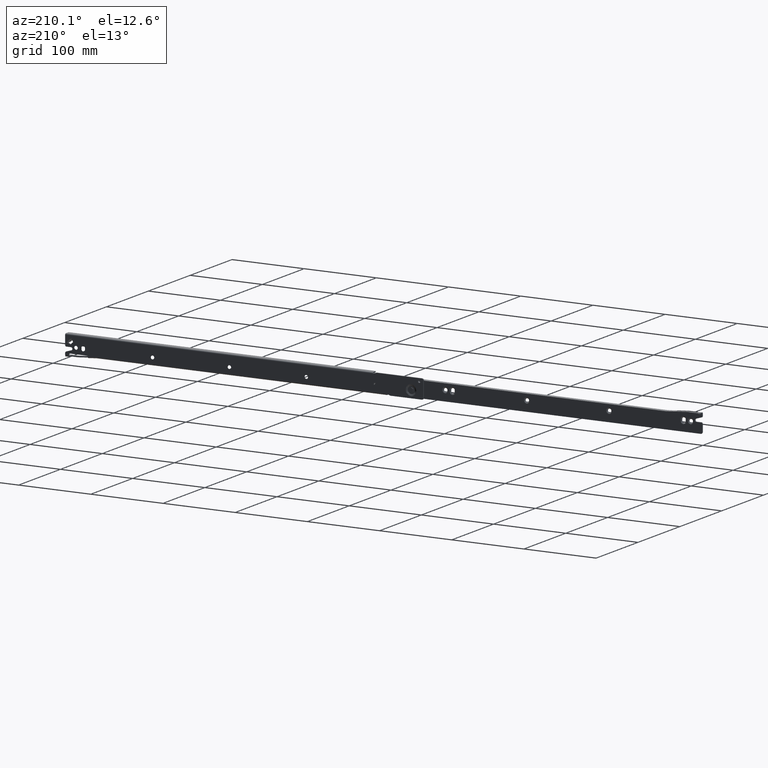
[diagram: clean part render]
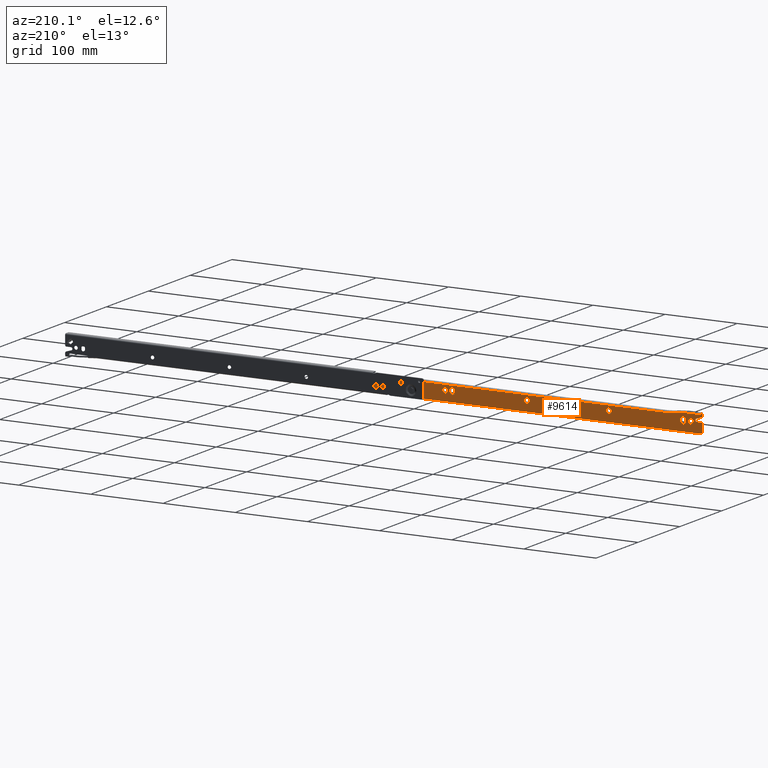
[diagram: same view with one face highlighted and labeled with its STEP entity id]
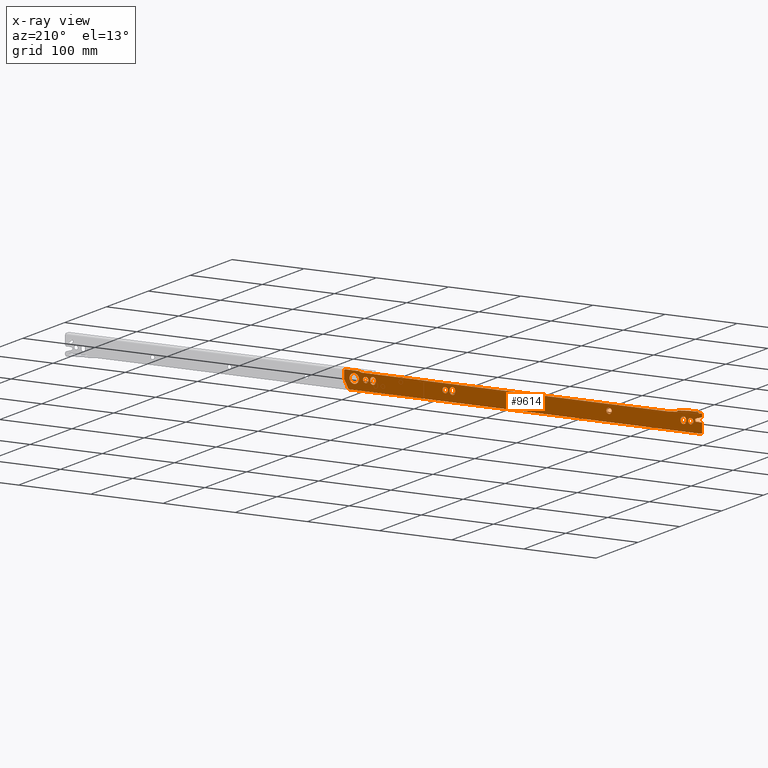
[diagram: x-ray of the same camera — body ghosted, the highlighted face saturated]
A machine part, auxiliary view. The second image highlights one B-rep face of the part: STEP entity #9614.
The next image is the same camera in x-ray: the body ghosted, the highlighted face saturated — about 0% of this face is hidden behind the body in this view.
In plain terms, the highlighted face is a freeform B-spline surface patch.
Its self-contained STEP definition (entity closure, byte-faithful):
#5507=CARTESIAN_POINT('',(462.261559997872330,1.500000001808762,14.294221621742340));
#5508=VERTEX_POINT('',#5507);
#5514=CARTESIAN_POINT('',(466.0,1.500000000000000,17.750000000000000));
#5515=VERTEX_POINT('',#5514);
#5516=CARTESIAN_POINT('',(466.0,1.500000000000000,17.750000000000000));
#5517=CARTESIAN_POINT('',(462.533535679786330,1.500000000000000,17.750000000000007));
#5518=CARTESIAN_POINT('',(462.261559997872380,1.500000001808762,14.294221621742336));
#5526=(BOUNDED_CURVE()B_SPLINE_CURVE(2,(#5516,#5517,#5518),.UNSPECIFIED.,.F.,.U.)B_SPLINE_CURVE_WITH_KNOTS((3,3),(0.0,0.236331299474004),.UNSPECIFIED.)CURVE()GEOMETRIC_REPRESENTATION_ITEM()RATIONAL_B_SPLINE_CURVE((1.0,0.723120659962772,0.969723353753566))REPRESENTATION_ITEM(''));
#5527=EDGE_CURVE('',#5515,#5508,#5526,.T.);
#5529=CARTESIAN_POINT('',(469.738440002127670,1.500000001808749,13.705778378257669));
#5530=VERTEX_POINT('',#5529);
#5531=CARTESIAN_POINT('',(469.738440002127670,1.500000001808749,13.705778378257667));
#5532=CARTESIAN_POINT('',(469.750000000000060,1.500000000000000,13.852662086027413));
#5533=CARTESIAN_POINT('',(469.750000000000000,1.500000000000000,14.0));
#5534=CARTESIAN_POINT('',(469.750000000000000,1.500000000000000,17.750000000000004));
#5535=CARTESIAN_POINT('',(466.0,1.500000000000000,17.750000000000000));
#5543=(BOUNDED_CURVE()B_SPLINE_CURVE(2,(#5531,#5532,#5533,#5534,#5535),.UNSPECIFIED.,.F.,.U.)B_SPLINE_CURVE_WITH_KNOTS((3,2,3),(0.736331299474005,0.750000000000000,1.0),.UNSPECIFIED.)CURVE()GEOMETRIC_REPRESENTATION_ITEM()RATIONAL_B_SPLINE_CURVE((0.969723353753567,0.983986121223776,1.0,0.707106781186547,1.0))REPRESENTATION_ITEM(''));
#5544=EDGE_CURVE('',#5530,#5515,#5543,.T.);
#5620=CARTESIAN_POINT('',(466.0,1.500000000000000,10.250000000000000));
#5621=VERTEX_POINT('',#5620);
#5622=CARTESIAN_POINT('',(466.0,1.500000000000000,10.250000000000000));
#5623=CARTESIAN_POINT('',(469.466464320213840,1.500000000000001,10.250000000000000));
#5624=CARTESIAN_POINT('',(469.738440002127790,1.500000001808749,13.705778378257662));
#5632=(BOUNDED_CURVE()B_SPLINE_CURVE(2,(#5622,#5623,#5624),.UNSPECIFIED.,.F.,.U.)B_SPLINE_CURVE_WITH_KNOTS((3,3),(0.500000000000000,0.736331299474004),.UNSPECIFIED.)CURVE()GEOMETRIC_REPRESENTATION_ITEM()RATIONAL_B_SPLINE_CURVE((1.0,0.723120659962772,0.969723353753566))REPRESENTATION_ITEM(''));
#5633=EDGE_CURVE('',#5621,#5530,#5632,.T.);
#5635=CARTESIAN_POINT('',(462.261559997872380,1.500000001808762,14.294221621742336));
#5636=CARTESIAN_POINT('',(462.250000000000060,1.500000000000000,14.147337913972596));
#5637=CARTESIAN_POINT('',(462.250000000000110,1.500000000000000,14.0));
#5638=CARTESIAN_POINT('',(462.250000000000060,1.500000000000000,10.250000000000000));
#5639=CARTESIAN_POINT('',(466.0,1.500000000000000,10.250000000000000));
#5647=(BOUNDED_CURVE()B_SPLINE_CURVE(2,(#5635,#5636,#5637,#5638,#5639),.UNSPECIFIED.,.F.,.U.)B_SPLINE_CURVE_WITH_KNOTS((3,2,3),(0.236331299474004,0.250000000000000,0.500000000000000),.UNSPECIFIED.)CURVE()GEOMETRIC_REPRESENTATION_ITEM()RATIONAL_B_SPLINE_CURVE((0.969723353753566,0.983986121223776,1.0,0.707106781186547,1.0))REPRESENTATION_ITEM(''));
#5648=EDGE_CURVE('',#5508,#5621,#5647,.T.);
#5689=CARTESIAN_POINT('',(352.261559997872330,1.500000001808784,14.294221621742350));
#5690=VERTEX_POINT('',#5689);
#5696=CARTESIAN_POINT('',(356.0,1.500000000000000,17.750000000000000));
#5697=VERTEX_POINT('',#5696);
#5698=CARTESIAN_POINT('',(356.0,1.500000000000000,17.750000000000000));
#5699=CARTESIAN_POINT('',(352.533535679786100,1.500000000000000,17.750000000000000));
#5700=CARTESIAN_POINT('',(352.261559997872330,1.500000001808784,14.294221621742345));
#5708=(BOUNDED_CURVE()B_SPLINE_CURVE(2,(#5698,#5699,#5700),.UNSPECIFIED.,.F.,.U.)B_SPLINE_CURVE_WITH_KNOTS((3,3),(0.0,0.236331299474004),.UNSPECIFIED.)CURVE()GEOMETRIC_REPRESENTATION_ITEM()RATIONAL_B_SPLINE_CURVE((1.0,0.723120659962772,0.969723353753566))REPRESENTATION_ITEM(''));
#5709=EDGE_CURVE('',#5697,#5690,#5708,.T.);
#5711=CARTESIAN_POINT('',(359.738440002127620,1.500000001808762,13.705778378257660));
#5712=VERTEX_POINT('',#5711);
#5713=CARTESIAN_POINT('',(359.738440002127670,1.500000001808762,13.705778378257667));
#5714=CARTESIAN_POINT('',(359.749999999999890,1.500000000000000,13.852662086027408));
#5715=CARTESIAN_POINT('',(359.749999999999890,1.500000000000000,14.0));
#5716=CARTESIAN_POINT('',(359.749999999999940,1.500000000000000,17.750000000000004));
#5717=CARTESIAN_POINT('',(356.0,1.500000000000000,17.750000000000000));
#5725=(BOUNDED_CURVE()B_SPLINE_CURVE(2,(#5713,#5714,#5715,#5716,#5717),.UNSPECIFIED.,.F.,.U.)B_SPLINE_CURVE_WITH_KNOTS((3,2,3),(0.736331299474004,0.750000000000000,1.0),.UNSPECIFIED.)CURVE()GEOMETRIC_REPRESENTATION_ITEM()RATIONAL_B_SPLINE_CURVE((0.969723353753566,0.983986121223776,1.0,0.707106781186547,1.0))REPRESENTATION_ITEM(''));
#5726=EDGE_CURVE('',#5712,#5697,#5725,.T.);
#5802=CARTESIAN_POINT('',(356.0,1.500000000000000,10.250000000000000));
#5803=VERTEX_POINT('',#5802);
#5804=CARTESIAN_POINT('',(356.0,1.500000000000000,10.250000000000000));
#5805=CARTESIAN_POINT('',(359.466464320213730,1.500000000000001,10.250000000000000));
#5806=CARTESIAN_POINT('',(359.738440002127670,1.500000001808763,13.705778378257662));
#5814=(BOUNDED_CURVE()B_SPLINE_CURVE(2,(#5804,#5805,#5806),.UNSPECIFIED.,.F.,.U.)B_SPLINE_CURVE_WITH_KNOTS((3,3),(0.500000000000000,0.736331299474004),.UNSPECIFIED.)CURVE()GEOMETRIC_REPRESENTATION_ITEM()RATIONAL_B_SPLINE_CURVE((1.0,0.723120659962772,0.969723353753566))REPRESENTATION_ITEM(''));
#5815=EDGE_CURVE('',#5803,#5712,#5814,.T.);
#5817=CARTESIAN_POINT('',(352.261559997872270,1.500000001808784,14.294221621742349));
#5818=CARTESIAN_POINT('',(352.249999999999940,1.500000000000000,14.147337913972603));
#5819=CARTESIAN_POINT('',(352.250000000000000,1.500000000000000,14.0));
#5820=CARTESIAN_POINT('',(352.249999999999940,1.500000000000000,10.250000000000000));
#5821=CARTESIAN_POINT('',(356.0,1.500000000000000,10.250000000000000));
#5829=(BOUNDED_CURVE()B_SPLINE_CURVE(2,(#5817,#5818,#5819,#5820,#5821),.UNSPECIFIED.,.F.,.U.)B_SPLINE_CURVE_WITH_KNOTS((3,2,3),(0.236331299474004,0.250000000000000,0.500000000000000),.UNSPECIFIED.)CURVE()GEOMETRIC_REPRESENTATION_ITEM()RATIONAL_B_SPLINE_CURVE((0.969723353753565,0.983986121223775,1.0,0.707106781186547,1.0))REPRESENTATION_ITEM(''));
#5830=EDGE_CURVE('',#5690,#5803,#5829,.T.);
#5871=CARTESIAN_POINT('',(239.261559997872300,1.500000001808774,14.294221621742340));
#5872=VERTEX_POINT('',#5871);
#5878=CARTESIAN_POINT('',(243.0,1.500000000000000,17.750000000000050));
#5879=VERTEX_POINT('',#5878);
#5880=CARTESIAN_POINT('',(243.0,1.500000000000000,17.750000000000050));
#5881=CARTESIAN_POINT('',(239.533535679786160,1.500000000000001,17.750000000000057));
#5882=CARTESIAN_POINT('',(239.261559997872300,1.500000001808775,14.294221621742340));
#5890=(BOUNDED_CURVE()B_SPLINE_CURVE(2,(#5880,#5881,#5882),.UNSPECIFIED.,.F.,.U.)B_SPLINE_CURVE_WITH_KNOTS((3,3),(0.0,0.236331299474004),.UNSPECIFIED.)CURVE()GEOMETRIC_REPRESENTATION_ITEM()RATIONAL_B_SPLINE_CURVE((1.0,0.723120659962772,0.969723353753566))REPRESENTATION_ITEM(''));
#5891=EDGE_CURVE('',#5879,#5872,#5890,.T.);
#5893=CARTESIAN_POINT('',(246.738440002127790,1.500000001808774,13.705778378257650));
#5894=VERTEX_POINT('',#5893);
#5895=CARTESIAN_POINT('',(246.738440002127730,1.500000001808774,13.705778378257653));
#5896=CARTESIAN_POINT('',(246.750000000000060,1.500000000000000,13.852662086027401));
#5897=CARTESIAN_POINT('',(246.750000000000110,1.500000000000000,14.0));
#5898=CARTESIAN_POINT('',(246.750000000000110,1.500000000000000,17.750000000000057));
#5899=CARTESIAN_POINT('',(243.0,1.500000000000000,17.750000000000050));
#5907=(BOUNDED_CURVE()B_SPLINE_CURVE(2,(#5895,#5896,#5897,#5898,#5899),.UNSPECIFIED.,.F.,.U.)B_SPLINE_CURVE_WITH_KNOTS((3,2,3),(0.736331299474004,0.750000000000000,1.0),.UNSPECIFIED.)CURVE()GEOMETRIC_REPRESENTATION_ITEM()RATIONAL_B_SPLINE_CURVE((0.969723353753566,0.983986121223776,1.0,0.707106781186548,1.0))REPRESENTATION_ITEM(''));
#5908=EDGE_CURVE('',#5894,#5879,#5907,.T.);
#5984=CARTESIAN_POINT('',(243.0,1.500000000000000,10.249999999999950));
#5985=VERTEX_POINT('',#5984);
#5986=CARTESIAN_POINT('',(243.0,1.500000000000000,10.249999999999950));
#5987=CARTESIAN_POINT('',(246.466464320213840,1.500000000000000,10.249999999999945));
#5988=CARTESIAN_POINT('',(246.738440002127730,1.500000001808774,13.705778378257653));
#5996=(BOUNDED_CURVE()B_SPLINE_CURVE(2,(#5986,#5987,#5988),.UNSPECIFIED.,.F.,.U.)B_SPLINE_CURVE_WITH_KNOTS((3,3),(0.500000000000000,0.736331299474004),.UNSPECIFIED.)CURVE()GEOMETRIC_REPRESENTATION_ITEM()RATIONAL_B_SPLINE_CURVE((1.0,0.723120659962772,0.969723353753566))REPRESENTATION_ITEM(''));
#5997=EDGE_CURVE('',#5985,#5894,#5996,.T.);
#5999=CARTESIAN_POINT('',(239.261559997872240,1.500000001808774,14.294221621742347));
#6000=CARTESIAN_POINT('',(239.249999999999910,1.500000000000000,14.147337913972596));
#6001=CARTESIAN_POINT('',(239.249999999999890,1.500000000000000,14.0));
#6002=CARTESIAN_POINT('',(239.250000000000000,1.500000000000000,10.249999999999945));
#6003=CARTESIAN_POINT('',(243.0,1.500000000000000,10.249999999999950));
#6011=(BOUNDED_CURVE()B_SPLINE_CURVE(2,(#5999,#6000,#6001,#6002,#6003),.UNSPECIFIED.,.F.,.U.)B_SPLINE_CURVE_WITH_KNOTS((3,2,3),(0.236331299474004,0.250000000000000,0.500000000000000),.UNSPECIFIED.)CURVE()GEOMETRIC_REPRESENTATION_ITEM()RATIONAL_B_SPLINE_CURVE((0.969723353753566,0.983986121223776,1.0,0.707106781186548,1.0))REPRESENTATION_ITEM(''));
#6012=EDGE_CURVE('',#5872,#5985,#6011,.T.);
#6053=CARTESIAN_POINT('',(125.261559997872200,1.500000001808778,14.294221621742350));
#6054=VERTEX_POINT('',#6053);
#6060=CARTESIAN_POINT('',(129.0,1.500000000000000,17.750000000000050));
#6061=VERTEX_POINT('',#6060);
#6062=CARTESIAN_POINT('',(129.0,1.500000000000000,17.750000000000050));
#6063=CARTESIAN_POINT('',(125.533535679786070,1.500000000000000,17.750000000000053));
#6064=CARTESIAN_POINT('',(125.261559997872250,1.500000001808778,14.294221621742341));
#6072=(BOUNDED_CURVE()B_SPLINE_CURVE(2,(#6062,#6063,#6064),.UNSPECIFIED.,.F.,.U.)B_SPLINE_CURVE_WITH_KNOTS((3,3),(0.0,0.236331299474004),.UNSPECIFIED.)CURVE()GEOMETRIC_REPRESENTATION_ITEM()RATIONAL_B_SPLINE_CURVE((1.0,0.723120659962772,0.969723353753566))REPRESENTATION_ITEM(''));
#6073=EDGE_CURVE('',#6061,#6054,#6072,.T.);
#6075=CARTESIAN_POINT('',(132.738440002127790,1.500000001808781,13.705778378257650));
#6076=VERTEX_POINT('',#6075);
#6077=CARTESIAN_POINT('',(132.738440002127760,1.500000001808781,13.705778378257653));
#6078=CARTESIAN_POINT('',(132.750000000000090,1.500000000000000,13.852662086027401));
#6079=CARTESIAN_POINT('',(132.750000000000110,1.500000000000000,14.0));
#6080=CARTESIAN_POINT('',(132.750000000000060,1.500000000000000,17.750000000000057));
#6081=CARTESIAN_POINT('',(129.0,1.500000000000000,17.750000000000050));
#6089=(BOUNDED_CURVE()B_SPLINE_CURVE(2,(#6077,#6078,#6079,#6080,#6081),.UNSPECIFIED.,.F.,.U.)B_SPLINE_CURVE_WITH_KNOTS((3,2,3),(0.736331299474004,0.750000000000000,1.0),.UNSPECIFIED.)CURVE()GEOMETRIC_REPRESENTATION_ITEM()RATIONAL_B_SPLINE_CURVE((0.969723353753566,0.983986121223776,1.0,0.707106781186548,1.0))REPRESENTATION_ITEM(''));
#6090=EDGE_CURVE('',#6076,#6061,#6089,.T.);
#6166=CARTESIAN_POINT('',(129.0,1.500000000000000,10.249999999999950));
#6167=VERTEX_POINT('',#6166);
#6168=CARTESIAN_POINT('',(129.0,1.500000000000000,10.249999999999950));
#6169=CARTESIAN_POINT('',(132.466464320213930,1.500000000000000,10.249999999999945));
#6170=CARTESIAN_POINT('',(132.738440002127760,1.500000001808781,13.705778378257653));
#6178=(BOUNDED_CURVE()B_SPLINE_CURVE(2,(#6168,#6169,#6170),.UNSPECIFIED.,.F.,.U.)B_SPLINE_CURVE_WITH_KNOTS((3,3),(0.500000000000000,0.736331299474004),.UNSPECIFIED.)CURVE()GEOMETRIC_REPRESENTATION_ITEM()RATIONAL_B_SPLINE_CURVE((1.0,0.723120659962772,0.969723353753566))REPRESENTATION_ITEM(''));
#6179=EDGE_CURVE('',#6167,#6076,#6178,.T.);
#6181=CARTESIAN_POINT('',(125.261559997872240,1.500000001808778,14.294221621742350));
#6182=CARTESIAN_POINT('',(125.249999999999970,1.500000000000000,14.147337913972597));
#6183=CARTESIAN_POINT('',(125.249999999999900,1.500000000000000,14.0));
#6184=CARTESIAN_POINT('',(125.249999999999940,1.500000000000000,10.249999999999945));
#6185=CARTESIAN_POINT('',(129.0,1.500000000000000,10.249999999999950));
#6193=(BOUNDED_CURVE()B_SPLINE_CURVE(2,(#6181,#6182,#6183,#6184,#6185),.UNSPECIFIED.,.F.,.U.)B_SPLINE_CURVE_WITH_KNOTS((3,2,3),(0.236331299474004,0.250000000000000,0.500000000000000),.UNSPECIFIED.)CURVE()GEOMETRIC_REPRESENTATION_ITEM()RATIONAL_B_SPLINE_CURVE((0.969723353753566,0.983986121223776,1.0,0.707106781186548,1.0))REPRESENTATION_ITEM(''));
#6194=EDGE_CURVE('',#6054,#6167,#6193,.T.);
#6493=CARTESIAN_POINT('',(488.499752501324280,1.499999998495464,14.056722491894410));
#6494=VERTEX_POINT('',#6493);
#6500=CARTESIAN_POINT('',(482.0,1.500000000000000,7.500000000000001));
#6501=VERTEX_POINT('',#6500);
#6502=CARTESIAN_POINT('',(488.499752501324390,1.499999998495464,14.056722491894414));
#6503=CARTESIAN_POINT('',(488.500000000000000,1.500000000000000,14.028361791477042));
#6504=CARTESIAN_POINT('',(488.500000000000000,1.500000000000000,14.0));
#6505=CARTESIAN_POINT('',(488.499999999999940,1.500000000000000,7.500000000000004));
#6506=CARTESIAN_POINT('',(482.0,1.500000000000000,7.500000000000001));
#6514=(BOUNDED_CURVE()B_SPLINE_CURVE(2,(#6502,#6503,#6504,#6505,#6506),.UNSPECIFIED.,.F.,.U.)B_SPLINE_CURVE_WITH_KNOTS((3,2,3),(0.248460105061127,0.250000000000000,0.500000000000000),.UNSPECIFIED.)CURVE()GEOMETRIC_REPRESENTATION_ITEM()RATIONAL_B_SPLINE_CURVE((0.996414026702843,0.998195900858875,1.0,0.707106781186547,1.0))REPRESENTATION_ITEM(''));
#6515=EDGE_CURVE('',#6494,#6501,#6514,.T.);
#6517=CARTESIAN_POINT('',(482.0,1.500000000000000,20.500000000000000));
#6518=VERTEX_POINT('',#6517);
#6519=CARTESIAN_POINT('',(482.0,1.500000000000000,7.500000000000001));
#6520=CARTESIAN_POINT('',(475.499999999999940,1.500000000000000,7.500000000000004));
#6521=CARTESIAN_POINT('',(475.500000000000000,1.500000000000000,14.0));
#6522=CARTESIAN_POINT('',(475.499999999999940,1.500000000000000,20.499999999999996));
#6523=CARTESIAN_POINT('',(482.0,1.500000000000000,20.500000000000000));
#6531=(BOUNDED_CURVE()B_SPLINE_CURVE(2,(#6519,#6520,#6521,#6522,#6523),.UNSPECIFIED.,.F.,.U.)B_SPLINE_CURVE_WITH_KNOTS((3,2,3),(0.500000000000000,0.750000000000000,1.0),.UNSPECIFIED.)CURVE()GEOMETRIC_REPRESENTATION_ITEM()RATIONAL_B_SPLINE_CURVE((1.0,0.707106781186547,1.0,0.707106781186547,1.0))REPRESENTATION_ITEM(''));
#6532=EDGE_CURVE('',#6501,#6518,#6531,.T.);
#6534=CARTESIAN_POINT('',(486.706995161289290,1.499999999996611,18.482655078370708));
#6535=VERTEX_POINT('',#6534);
#6536=CARTESIAN_POINT('',(482.0,1.500000000000000,20.500000000000000));
#6537=CARTESIAN_POINT('',(484.785798909971960,1.500000000000000,20.500000000000004));
#6538=CARTESIAN_POINT('',(486.706995161289400,1.499999999996612,18.482655078370716));
#6546=(BOUNDED_CURVE()B_SPLINE_CURVE(2,(#6536,#6537,#6538),.UNSPECIFIED.,.F.,.U.)B_SPLINE_CURVE_WITH_KNOTS((3,3),(0.0,0.128682976132998),.UNSPECIFIED.)CURVE()GEOMETRIC_REPRESENTATION_ITEM()RATIONAL_B_SPLINE_CURVE((1.0,0.849238515655646,0.853680523244571))REPRESENTATION_ITEM(''));
#6547=EDGE_CURVE('',#6518,#6535,#6546,.T.);
#6585=CARTESIAN_POINT('',(486.706995161289400,1.499999999996612,18.482655078370716));
#6586=CARTESIAN_POINT('',(488.477350819815170,1.500000000000000,16.623699755730627));
#6587=CARTESIAN_POINT('',(488.499752501324390,1.499999998495464,14.056722491894414));
#6595=(BOUNDED_CURVE()B_SPLINE_CURVE(2,(#6585,#6586,#6587),.UNSPECIFIED.,.F.,.U.)B_SPLINE_CURVE_WITH_KNOTS((3,3),(0.128682976132998,0.248460105061127),.UNSPECIFIED.)CURVE()GEOMETRIC_REPRESENTATION_ITEM()RATIONAL_B_SPLINE_CURVE((0.853680523244571,0.857815109898275,0.996414026702843))REPRESENTATION_ITEM(''));
#6596=EDGE_CURVE('',#6535,#6494,#6595,.T.);
#6637=CARTESIAN_POINT('',(12.261559997872260,1.500000001808776,14.294221621742350));
#6638=VERTEX_POINT('',#6637);
#6644=CARTESIAN_POINT('',(16.0,1.500000000000000,17.750000000000039));
#6645=VERTEX_POINT('',#6644);
#6646=CARTESIAN_POINT('',(16.0,1.500000000000000,17.750000000000039));
#6647=CARTESIAN_POINT('',(12.533535679786086,1.500000000000000,17.750000000000043));
#6648=CARTESIAN_POINT('',(12.261559997872254,1.500000001808776,14.294221621742341));
#6656=(BOUNDED_CURVE()B_SPLINE_CURVE(2,(#6646,#6647,#6648),.UNSPECIFIED.,.F.,.U.)B_SPLINE_CURVE_WITH_KNOTS((3,3),(0.0,0.236331299474004),.UNSPECIFIED.)CURVE()GEOMETRIC_REPRESENTATION_ITEM()RATIONAL_B_SPLINE_CURVE((1.0,0.723120659962772,0.969723353753566))REPRESENTATION_ITEM(''));
#6657=EDGE_CURVE('',#6645,#6638,#6656,.T.);
#6659=CARTESIAN_POINT('',(19.738440002127749,1.500000001808776,13.705778378257660));
#6660=VERTEX_POINT('',#6659);
#6661=CARTESIAN_POINT('',(19.738440002127742,1.500000001808776,13.705778378257659));
#6662=CARTESIAN_POINT('',(19.750000000000046,1.500000000000000,13.852662086027410));
#6663=CARTESIAN_POINT('',(19.750000000000050,1.500000000000000,14.0));
#6664=CARTESIAN_POINT('',(19.750000000000050,1.500000000000000,17.750000000000043));
#6665=CARTESIAN_POINT('',(16.0,1.500000000000000,17.750000000000039));
#6673=(BOUNDED_CURVE()B_SPLINE_CURVE(2,(#6661,#6662,#6663,#6664,#6665),.UNSPECIFIED.,.F.,.U.)B_SPLINE_CURVE_WITH_KNOTS((3,2,3),(0.736331299474004,0.750000000000000,1.0),.UNSPECIFIED.)CURVE()GEOMETRIC_REPRESENTATION_ITEM()RATIONAL_B_SPLINE_CURVE((0.969723353753566,0.983986121223776,1.0,0.707106781186548,1.0))REPRESENTATION_ITEM(''));
#6674=EDGE_CURVE('',#6660,#6645,#6673,.T.);
#6750=CARTESIAN_POINT('',(16.0,1.500000000000000,10.249999999999959));
#6751=VERTEX_POINT('',#6750);
#6752=CARTESIAN_POINT('',(16.0,1.500000000000000,10.249999999999959));
#6753=CARTESIAN_POINT('',(19.466464320213920,1.500000000000000,10.249999999999956));
#6754=CARTESIAN_POINT('',(19.738440002127746,1.500000001808776,13.705778378257653));
#6762=(BOUNDED_CURVE()B_SPLINE_CURVE(2,(#6752,#6753,#6754),.UNSPECIFIED.,.F.,.U.)B_SPLINE_CURVE_WITH_KNOTS((3,3),(0.500000000000000,0.736331299474004),.UNSPECIFIED.)CURVE()GEOMETRIC_REPRESENTATION_ITEM()RATIONAL_B_SPLINE_CURVE((1.0,0.723120659962772,0.969723353753566))REPRESENTATION_ITEM(''));
#6763=EDGE_CURVE('',#6751,#6660,#6762,.T.);
#6765=CARTESIAN_POINT('',(12.261559997872252,1.500000001808776,14.294221621742350));
#6766=CARTESIAN_POINT('',(12.249999999999956,1.500000000000000,14.147337913972597));
#6767=CARTESIAN_POINT('',(12.249999999999959,1.500000000000000,14.0));
#6768=CARTESIAN_POINT('',(12.249999999999956,1.500000000000000,10.249999999999956));
#6769=CARTESIAN_POINT('',(16.0,1.500000000000000,10.249999999999959));
#6777=(BOUNDED_CURVE()B_SPLINE_CURVE(2,(#6765,#6766,#6767,#6768,#6769),.UNSPECIFIED.,.F.,.U.)B_SPLINE_CURVE_WITH_KNOTS((3,2,3),(0.236331299474004,0.250000000000000,0.500000000000000),.UNSPECIFIED.)CURVE()GEOMETRIC_REPRESENTATION_ITEM()RATIONAL_B_SPLINE_CURVE((0.969723353753566,0.983986121223776,1.0,0.707106781186548,1.0))REPRESENTATION_ITEM(''));
#6778=EDGE_CURVE('',#6638,#6751,#6777,.T.);
#7153=CARTESIAN_POINT('',(452.250000000000000,1.500000000000000,15.0));
#7154=VERTEX_POINT('',#7153);
#7169=CARTESIAN_POINT('',(452.250000000000000,1.500000000000000,12.999999999999799));
#7170=VERTEX_POINT('',#7169);
#7176=CARTESIAN_POINT('',(452.250000000000000,1.500000000000000,15.0));
#7177=CARTESIAN_POINT('',(452.250000000000000,1.500000000000000,12.999999999999799));
#7178=QUASI_UNIFORM_CURVE('',1,(#7176,#7177),.UNSPECIFIED.,.F.,.U.);
#7179=EDGE_CURVE('',#7154,#7170,#7178,.T.);
#7204=CARTESIAN_POINT('',(459.750000000000000,1.500000000000000,12.999999999999799));
#7205=VERTEX_POINT('',#7204);
#7211=CARTESIAN_POINT('',(452.250000000000110,1.500000000000000,12.999999999999799));
#7212=CARTESIAN_POINT('',(452.250000000000060,1.500000000000000,9.249999999999799));
#7213=CARTESIAN_POINT('',(456.0,1.500000000000000,9.249999999999799));
#7214=CARTESIAN_POINT('',(459.750000000000000,1.500000000000000,9.249999999999799));
#7215=CARTESIAN_POINT('',(459.750000000000000,1.500000000000000,12.999999999999799));
#7223=(BOUNDED_CURVE()B_SPLINE_CURVE(2,(#7211,#7212,#7213,#7214,#7215),.UNSPECIFIED.,.F.,.U.)B_SPLINE_CURVE_WITH_KNOTS((3,2,3),(0.0,0.500000000000000,1.0),.UNSPECIFIED.)CURVE()GEOMETRIC_REPRESENTATION_ITEM()RATIONAL_B_SPLINE_CURVE((1.0,0.707106781186547,1.0,0.707106781186547,1.0))REPRESENTATION_ITEM(''));
#7224=EDGE_CURVE('',#7170,#7205,#7223,.T.);
#7263=CARTESIAN_POINT('',(459.750000000000000,1.500000000000000,15.0));
#7264=VERTEX_POINT('',#7263);
#7288=CARTESIAN_POINT('',(459.750000000000000,1.500000000000000,15.0));
#7289=CARTESIAN_POINT('',(459.750000000000000,1.500000000000000,18.750000000000007));
#7290=CARTESIAN_POINT('',(456.0,1.500000000000000,18.750000000000000));
#7291=CARTESIAN_POINT('',(452.250000000000060,1.500000000000000,18.750000000000007));
#7292=CARTESIAN_POINT('',(452.250000000000110,1.500000000000000,15.0));
#7300=(BOUNDED_CURVE()B_SPLINE_CURVE(2,(#7288,#7289,#7290,#7291,#7292),.UNSPECIFIED.,.F.,.U.)B_SPLINE_CURVE_WITH_KNOTS((3,2,3),(0.0,0.500000000000000,1.0),.UNSPECIFIED.)CURVE()GEOMETRIC_REPRESENTATION_ITEM()RATIONAL_B_SPLINE_CURVE((1.0,0.707106781186547,1.0,0.707106781186547,1.0))REPRESENTATION_ITEM(''));
#7301=EDGE_CURVE('',#7264,#7154,#7300,.T.);
#7318=CARTESIAN_POINT('',(459.750000000000000,1.500000000000000,12.999999999999799));
#7319=CARTESIAN_POINT('',(459.750000000000000,1.500000000000000,15.0));
#7320=QUASI_UNIFORM_CURVE('',1,(#7318,#7319),.UNSPECIFIED.,.F.,.U.);
#7321=EDGE_CURVE('',#7205,#7264,#7320,.T.);
#7331=CARTESIAN_POINT('',(342.250000000000000,1.500000000000000,15.0));
#7332=VERTEX_POINT('',#7331);
#7347=CARTESIAN_POINT('',(342.250000000000000,1.500000000000000,12.999999999999799));
#7348=VERTEX_POINT('',#7347);
#7354=CARTESIAN_POINT('',(342.250000000000000,1.500000000000000,15.0));
#7355=CARTESIAN_POINT('',(342.250000000000000,1.500000000000000,12.999999999999799));
#7356=QUASI_UNIFORM_CURVE('',1,(#7354,#7355),.UNSPECIFIED.,.F.,.U.);
#7357=EDGE_CURVE('',#7332,#7348,#7356,.T.);
#7382=CARTESIAN_POINT('',(349.750000000000000,1.500000000000000,12.999999999999799));
#7383=VERTEX_POINT('',#7382);
#7389=CARTESIAN_POINT('',(342.250000000000000,1.500000000000000,12.999999999999799));
#7390=CARTESIAN_POINT('',(342.250000000000060,1.500000000000000,9.249999999999799));
#7391=CARTESIAN_POINT('',(346.0,1.500000000000000,9.249999999999799));
#7392=CARTESIAN_POINT('',(349.750000000000060,1.500000000000000,9.249999999999799));
#7393=CARTESIAN_POINT('',(349.749999999999890,1.500000000000000,12.999999999999799));
#7401=(BOUNDED_CURVE()B_SPLINE_CURVE(2,(#7389,#7390,#7391,#7392,#7393),.UNSPECIFIED.,.F.,.U.)B_SPLINE_CURVE_WITH_KNOTS((3,2,3),(0.0,0.500000000000000,1.0),.UNSPECIFIED.)CURVE()GEOMETRIC_REPRESENTATION_ITEM()RATIONAL_B_SPLINE_CURVE((1.0,0.707106781186547,1.0,0.707106781186547,1.0))REPRESENTATION_ITEM(''));
#7402=EDGE_CURVE('',#7348,#7383,#7401,.T.);
#7441=CARTESIAN_POINT('',(349.750000000000000,1.500000000000000,15.0));
#7442=VERTEX_POINT('',#7441);
#7466=CARTESIAN_POINT('',(349.749999999999890,1.500000000000000,15.0));
#7467=CARTESIAN_POINT('',(349.750000000000060,1.500000000000000,18.750000000000007));
#7468=CARTESIAN_POINT('',(346.0,1.500000000000000,18.750000000000000));
#7469=CARTESIAN_POINT('',(342.250000000000060,1.500000000000000,18.750000000000007));
#7470=CARTESIAN_POINT('',(342.250000000000000,1.500000000000000,15.0));
#7478=(BOUNDED_CURVE()B_SPLINE_CURVE(2,(#7466,#7467,#7468,#7469,#7470),.UNSPECIFIED.,.F.,.U.)B_SPLINE_CURVE_WITH_KNOTS((3,2,3),(0.0,0.500000000000000,1.0),.UNSPECIFIED.)CURVE()GEOMETRIC_REPRESENTATION_ITEM()RATIONAL_B_SPLINE_CURVE((1.0,0.707106781186547,1.0,0.707106781186547,1.0))REPRESENTATION_ITEM(''));
#7479=EDGE_CURVE('',#7442,#7332,#7478,.T.);
#7496=CARTESIAN_POINT('',(349.750000000000000,1.500000000000000,12.999999999999799));
#7497=CARTESIAN_POINT('',(349.750000000000000,1.500000000000000,15.0));
#7498=QUASI_UNIFORM_CURVE('',1,(#7496,#7497),.UNSPECIFIED.,.F.,.U.);
#7499=EDGE_CURVE('',#7383,#7442,#7498,.T.);
#8071=CARTESIAN_POINT('',(496.0,1.499999999999946,22.0));
#8072=VERTEX_POINT('',#8071);
#8078=CARTESIAN_POINT('',(494.0,1.499999999999946,24.0));
#8079=VERTEX_POINT('',#8078);
#8080=CARTESIAN_POINT('',(496.0,1.499999999999946,22.0));
#8081=CARTESIAN_POINT('',(496.000000000000060,1.499999999999946,23.999999999999996));
#8082=CARTESIAN_POINT('',(494.0,1.499999999999946,24.0));
#8090=(BOUNDED_CURVE()B_SPLINE_CURVE(2,(#8080,#8081,#8082),.UNSPECIFIED.,.F.,.U.)CURVE()GEOMETRIC_REPRESENTATION_ITEM()QUASI_UNIFORM_CURVE()RATIONAL_B_SPLINE_CURVE((1.0,0.707106781186548,1.0))REPRESENTATION_ITEM(''));
#8091=EDGE_CURVE('',#8072,#8079,#8090,.T.);
#8113=CARTESIAN_POINT('',(496.0,1.499999999999946,11.999999999999799));
#8114=VERTEX_POINT('',#8113);
#8120=CARTESIAN_POINT('',(496.0,1.499999999999946,11.999999999999799));
#8121=CARTESIAN_POINT('',(496.0,1.499999999999946,22.0));
#8122=QUASI_UNIFORM_CURVE('',1,(#8120,#8121),.UNSPECIFIED.,.F.,.U.);
#8123=EDGE_CURVE('',#8114,#8072,#8122,.T.);
#8141=CARTESIAN_POINT('',(490.552786384763980,1.499999999999946,1.105572814528704));
#8142=VERTEX_POINT('',#8141);
#8148=CARTESIAN_POINT('',(490.552786384763980,1.499999999999946,1.105572814528704));
#8149=CARTESIAN_POINT('',(496.0,1.499999999999946,11.999999999999799));
#8150=QUASI_UNIFORM_CURVE('',1,(#8148,#8149),.UNSPECIFIED.,.F.,.U.);
#8151=EDGE_CURVE('',#8142,#8114,#8150,.T.);
#8186=CARTESIAN_POINT('',(488.763932000000010,1.499999999999946,0.0));
#8187=VERTEX_POINT('',#8186);
#8193=CARTESIAN_POINT('',(488.763932000000010,1.499999999999946,0.0));
#8194=CARTESIAN_POINT('',(489.999999981770940,1.499999999999947,0.0));
#8195=CARTESIAN_POINT('',(490.552786384764200,1.499999999999946,1.105572814528649));
#8203=(BOUNDED_CURVE()B_SPLINE_CURVE(2,(#8193,#8194,#8195),.UNSPECIFIED.,.F.,.U.)CURVE()GEOMETRIC_REPRESENTATION_ITEM()QUASI_UNIFORM_CURVE()RATIONAL_B_SPLINE_CURVE((1.0,0.850650807539638,1.0))REPRESENTATION_ITEM(''));
#8204=EDGE_CURVE('',#8187,#8142,#8203,.T.);
#8224=CARTESIAN_POINT('',(472.0,1.499999999999946,22.500000000000000));
#8225=VERTEX_POINT('',#8224);
#8231=CARTESIAN_POINT('',(471.0,1.500000000000000,22.500000000000000));
#8232=VERTEX_POINT('',#8231);
#8233=CARTESIAN_POINT('',(472.0,1.499999999999946,22.500000000000000));
#8234=CARTESIAN_POINT('',(471.0,1.500000000000000,22.500000000000000));
#8235=QUASI_UNIFORM_CURVE('',1,(#8233,#8234),.UNSPECIFIED.,.F.,.U.);
#8236=EDGE_CURVE('',#8225,#8232,#8235,.T.);
#8258=CARTESIAN_POINT('',(476.0,1.499999999999946,24.0));
#8259=VERTEX_POINT('',#8258);
#8265=CARTESIAN_POINT('',(476.0,1.499999999999946,24.0));
#8266=CARTESIAN_POINT('',(472.0,1.499999999999946,22.500000000000000));
#8267=QUASI_UNIFORM_CURVE('',1,(#8265,#8266),.UNSPECIFIED.,.F.,.U.);
#8268=EDGE_CURVE('',#8259,#8225,#8267,.T.);
#8285=CARTESIAN_POINT('',(494.0,1.499999999999946,24.0));
#8286=CARTESIAN_POINT('',(476.0,1.499999999999946,24.0));
#8287=QUASI_UNIFORM_CURVE('',1,(#8285,#8286),.UNSPECIFIED.,.F.,.U.);
#8288=EDGE_CURVE('',#8079,#8259,#8287,.T.);
#8299=CARTESIAN_POINT('',(22.250000000000000,1.500000000000000,15.0));
#8300=VERTEX_POINT('',#8299);
#8315=CARTESIAN_POINT('',(22.250000000000000,1.500000000000000,12.999999999999799));
#8316=VERTEX_POINT('',#8315);
#8322=CARTESIAN_POINT('',(22.250000000000000,1.500000000000000,15.0));
#8323=CARTESIAN_POINT('',(22.250000000000000,1.500000000000000,12.999999999999799));
#8324=QUASI_UNIFORM_CURVE('',1,(#8322,#8323),.UNSPECIFIED.,.F.,.U.);
#8325=EDGE_CURVE('',#8300,#8316,#8324,.T.);
#8350=CARTESIAN_POINT('',(29.750000000000000,1.500000000000000,12.999999999999799));
#8351=VERTEX_POINT('',#8350);
#8357=CARTESIAN_POINT('',(22.250000000000000,1.500000000000000,12.999999999999799));
#8358=CARTESIAN_POINT('',(22.249999999999954,1.500000000000000,9.249999999999750));
#8359=CARTESIAN_POINT('',(26.0,1.500000000000000,9.249999999999750));
#8360=CARTESIAN_POINT('',(29.750000000000046,1.500000000000000,9.249999999999750));
#8361=CARTESIAN_POINT('',(29.750000000000050,1.500000000000000,12.999999999999799));
#8369=(BOUNDED_CURVE()B_SPLINE_CURVE(2,(#8357,#8358,#8359,#8360,#8361),.UNSPECIFIED.,.F.,.U.)B_SPLINE_CURVE_WITH_KNOTS((3,2,3),(0.0,0.500000000000000,1.0),.UNSPECIFIED.)CURVE()GEOMETRIC_REPRESENTATION_ITEM()RATIONAL_B_SPLINE_CURVE((1.0,0.707106781186547,1.0,0.707106781186547,1.0))REPRESENTATION_ITEM(''));
#8370=EDGE_CURVE('',#8316,#8351,#8369,.T.);
#8409=CARTESIAN_POINT('',(29.750000000000000,1.500000000000000,15.0));
#8410=VERTEX_POINT('',#8409);
#8434=CARTESIAN_POINT('',(29.750000000000050,1.500000000000000,15.0));
#8435=CARTESIAN_POINT('',(29.750000000000046,1.500000000000000,18.750000000000050));
#8436=CARTESIAN_POINT('',(26.0,1.500000000000000,18.750000000000050));
#8437=CARTESIAN_POINT('',(22.249999999999954,1.500000000000000,18.750000000000050));
#8438=CARTESIAN_POINT('',(22.250000000000000,1.500000000000000,15.0));
#8446=(BOUNDED_CURVE()B_SPLINE_CURVE(2,(#8434,#8435,#8436,#8437,#8438),.UNSPECIFIED.,.F.,.U.)B_SPLINE_CURVE_WITH_KNOTS((3,2,3),(0.0,0.500000000000000,1.0),.UNSPECIFIED.)CURVE()GEOMETRIC_REPRESENTATION_ITEM()RATIONAL_B_SPLINE_CURVE((1.0,0.707106781186547,1.0,0.707106781186547,1.0))REPRESENTATION_ITEM(''));
#8447=EDGE_CURVE('',#8410,#8300,#8446,.T.);
#8464=CARTESIAN_POINT('',(29.750000000000000,1.500000000000000,12.999999999999799));
#8465=CARTESIAN_POINT('',(29.750000000000000,1.500000000000000,15.0));
#8466=QUASI_UNIFORM_CURVE('',1,(#8464,#8465),.UNSPECIFIED.,.F.,.U.);
#8467=EDGE_CURVE('',#8351,#8410,#8466,.T.);
#8477=CARTESIAN_POINT('',(34.500000000000000,1.500000000000000,25.077586206896498));
#8478=VERTEX_POINT('',#8477);
#8493=CARTESIAN_POINT('',(34.500000000000000,1.500000000000000,23.575193530534701));
#8494=VERTEX_POINT('',#8493);
#8500=CARTESIAN_POINT('',(34.500000000000000,1.500000000000000,23.575193530534701));
#8501=CARTESIAN_POINT('',(34.500000000000000,1.500000000000000,25.077586206896498));
#8502=QUASI_UNIFORM_CURVE('',1,(#8500,#8501),.UNSPECIFIED.,.F.,.U.);
#8503=EDGE_CURVE('',#8494,#8478,#8502,.T.);
#8522=CARTESIAN_POINT('',(5.0,1.500000000000000,26.500000000000000));
#8523=VERTEX_POINT('',#8522);
#8529=CARTESIAN_POINT('',(5.0,1.500000000000000,25.0));
#8530=VERTEX_POINT('',#8529);
#8531=CARTESIAN_POINT('',(5.0,1.500000000000000,25.0));
#8532=CARTESIAN_POINT('',(5.0,1.500000000000000,26.500000000000000));
#8533=QUASI_UNIFORM_CURVE('',1,(#8531,#8532),.UNSPECIFIED.,.F.,.U.);
#8534=EDGE_CURVE('',#8530,#8523,#8533,.T.);
#8759=CARTESIAN_POINT('',(18.0,1.500000000000055,26.500000000000000));
#8760=VERTEX_POINT('',#8759);
#8789=CARTESIAN_POINT('',(18.0,1.500000000000055,26.500000000000000));
#8790=CARTESIAN_POINT('',(34.500000000000000,1.500000000000000,25.077586206896498));
#8791=QUASI_UNIFORM_CURVE('',1,(#8789,#8790),.UNSPECIFIED.,.F.,.U.);
#8792=EDGE_CURVE('',#8760,#8478,#8791,.T.);
#8834=CARTESIAN_POINT('',(5.0,1.500000000000000,26.500000000000000));
#8835=CARTESIAN_POINT('',(18.0,1.500000000000055,26.500000000000000));
#8836=QUASI_UNIFORM_CURVE('',1,(#8834,#8835),.UNSPECIFIED.,.F.,.U.);
#8837=EDGE_CURVE('',#8523,#8760,#8836,.T.);
#8852=CARTESIAN_POINT('',(0.0,1.500000000000000,25.0));
#8853=VERTEX_POINT('',#8852);
#8875=CARTESIAN_POINT('',(5.0,1.500000000000000,25.0));
#8876=CARTESIAN_POINT('',(0.0,1.500000000000000,25.0));
#8877=QUASI_UNIFORM_CURVE('',1,(#8875,#8876),.UNSPECIFIED.,.F.,.U.);
#8878=EDGE_CURVE('',#8530,#8853,#8877,.T.);
#8898=CARTESIAN_POINT('',(47.0,1.500000000000000,22.500000000000000));
#8899=VERTEX_POINT('',#8898);
#8905=CARTESIAN_POINT('',(47.0,1.500000000000000,22.500000000000000));
#8906=CARTESIAN_POINT('',(34.500000000000000,1.500000000000000,23.575193530534701));
#8907=QUASI_UNIFORM_CURVE('',1,(#8905,#8906),.UNSPECIFIED.,.F.,.U.);
#8908=EDGE_CURVE('',#8899,#8494,#8907,.T.);
#8928=CARTESIAN_POINT('',(-9.947598E-014,1.499999999999946,12.500000000000000));
#8929=VERTEX_POINT('',#8928);
#8935=CARTESIAN_POINT('',(0.0,1.499999999999946,2.0));
#8936=VERTEX_POINT('',#8935);
#8937=CARTESIAN_POINT('',(-9.947598E-014,1.499999999999946,12.500000000000000));
#8938=CARTESIAN_POINT('',(0.0,1.499999999999946,2.0));
#8939=QUASI_UNIFORM_CURVE('',1,(#8937,#8938),.UNSPECIFIED.,.F.,.U.);
#8940=EDGE_CURVE('',#8929,#8936,#8939,.T.);
#8979=CARTESIAN_POINT('',(1.499999999999900,1.499999999999946,14.0));
#8980=VERTEX_POINT('',#8979);
#8986=CARTESIAN_POINT('',(1.499999999999900,1.499999999999946,14.0));
#8987=CARTESIAN_POINT('',(-9.996344E-014,1.499999999999946,13.999999999999998));
#8988=CARTESIAN_POINT('',(-9.996344E-014,1.499999999999946,12.500000000000000));
#8996=(BOUNDED_CURVE()B_SPLINE_CURVE(2,(#8986,#8987,#8988),.UNSPECIFIED.,.F.,.U.)CURVE()GEOMETRIC_REPRESENTATION_ITEM()QUASI_UNIFORM_CURVE()RATIONAL_B_SPLINE_CURVE((1.0,0.707106781186548,1.0))REPRESENTATION_ITEM(''));
#8997=EDGE_CURVE('',#8980,#8929,#8996,.T.);
#9015=CARTESIAN_POINT('',(8.0,1.499999999999946,14.0));
#9016=VERTEX_POINT('',#9015);
#9022=CARTESIAN_POINT('',(8.0,1.499999999999946,14.0));
#9023=CARTESIAN_POINT('',(1.499999999999900,1.499999999999946,14.0));
#9024=QUASI_UNIFORM_CURVE('',1,(#9022,#9023),.UNSPECIFIED.,.F.,.U.);
#9025=EDGE_CURVE('',#9016,#8980,#9024,.T.);
#9066=CARTESIAN_POINT('',(8.577140990482000,1.499999999999946,17.914917302941699));
#9067=VERTEX_POINT('',#9066);
#9073=CARTESIAN_POINT('',(8.0,1.499999999999946,14.0));
#9074=CARTESIAN_POINT('',(9.726774151399797,1.499999999999946,14.000000000000005));
#9075=CARTESIAN_POINT('',(9.978614996137875,1.499999999999946,15.708310615451451));
#9076=CARTESIAN_POINT('',(10.230455840875955,1.499999999999946,17.416621230902891));
#9077=CARTESIAN_POINT('',(8.577140990481997,1.499999999999946,17.914917302941689));
#9085=(BOUNDED_CURVE()B_SPLINE_CURVE(2,(#9073,#9074,#9075,#9076,#9077),.UNSPECIFIED.,.F.,.U.)B_SPLINE_CURVE_WITH_KNOTS((3,2,3),(0.0,0.500000000000000,1.0),.UNSPECIFIED.)CURVE()GEOMETRIC_REPRESENTATION_ITEM()RATIONAL_B_SPLINE_CURVE((1.0,0.756916340249792,1.0,0.756916340249792,1.0))REPRESENTATION_ITEM(''));
#9086=EDGE_CURVE('',#9016,#9067,#9085,.T.);
#9104=CARTESIAN_POINT('',(1.067144257138398,1.499999999999946,20.178371022793751));
#9105=VERTEX_POINT('',#9104);
#9111=CARTESIAN_POINT('',(1.067144257138398,1.499999999999946,20.178371022793751));
#9112=CARTESIAN_POINT('',(8.577140990482000,1.499999999999946,17.914917302941699));
#9113=QUASI_UNIFORM_CURVE('',1,(#9111,#9112),.UNSPECIFIED.,.F.,.U.);
#9114=EDGE_CURVE('',#9105,#9067,#9113,.T.);
#9149=CARTESIAN_POINT('',(0.0,1.499999999999946,21.614559000000000));
#9150=VERTEX_POINT('',#9149);
#9156=CARTESIAN_POINT('',(0.0,1.499999999999946,21.614559000000000));
#9157=CARTESIAN_POINT('',(-9.996344E-014,1.499999999999946,20.499999895542427));
#9158=CARTESIAN_POINT('',(1.067144257138394,1.499999999999946,20.178371022793741));
#9166=(BOUNDED_CURVE()B_SPLINE_CURVE(2,(#9156,#9157,#9158),.UNSPECIFIED.,.F.,.U.)CURVE()GEOMETRIC_REPRESENTATION_ITEM()QUASI_UNIFORM_CURVE()RATIONAL_B_SPLINE_CURVE((1.0,0.802673811470452,1.0))REPRESENTATION_ITEM(''));
#9167=EDGE_CURVE('',#9150,#9105,#9166,.T.);
#9185=CARTESIAN_POINT('',(0.0,1.500000000000000,25.0));
#9186=CARTESIAN_POINT('',(0.0,1.499999999999946,21.614559000000000));
#9187=QUASI_UNIFORM_CURVE('',1,(#9185,#9186),.UNSPECIFIED.,.F.,.U.);
#9188=EDGE_CURVE('',#8853,#9150,#9187,.T.);
#9263=CARTESIAN_POINT('',(2.0,1.499999999999946,0.0));
#9264=VERTEX_POINT('',#9263);
#9270=CARTESIAN_POINT('',(2.0,1.499999999999946,0.0));
#9271=CARTESIAN_POINT('',(488.763932000000010,1.499999999999946,0.0));
#9272=QUASI_UNIFORM_CURVE('',1,(#9270,#9271),.UNSPECIFIED.,.F.,.U.);
#9273=EDGE_CURVE('',#9264,#8187,#9272,.T.);
#9307=CARTESIAN_POINT('',(0.0,1.499999999999946,2.0));
#9308=CARTESIAN_POINT('',(0.0,1.499999999999946,0.0));
#9309=CARTESIAN_POINT('',(2.0,1.499999999999946,0.0));
#9317=(BOUNDED_CURVE()B_SPLINE_CURVE(2,(#9307,#9308,#9309),.UNSPECIFIED.,.F.,.U.)CURVE()GEOMETRIC_REPRESENTATION_ITEM()QUASI_UNIFORM_CURVE()RATIONAL_B_SPLINE_CURVE((1.0,0.707106781186548,1.0))REPRESENTATION_ITEM(''));
#9318=EDGE_CURVE('',#8936,#9264,#9317,.T.);
#9434=CARTESIAN_POINT('',(471.0,1.500000000000000,22.500000000000000));
#9435=CARTESIAN_POINT('',(47.0,1.500000000000000,22.500000000000000));
#9436=QUASI_UNIFORM_CURVE('',1,(#9434,#9435),.UNSPECIFIED.,.F.,.U.);
#9437=EDGE_CURVE('',#8232,#8899,#9436,.T.);
#9530=CARTESIAN_POINT('',(-24.775199038655838,1.500000000000000,27.823674948637859));
#9531=CARTESIAN_POINT('',(520.775212342412600,1.500000000000000,27.823674948637859));
#9532=CARTESIAN_POINT('',(-24.775199038655838,1.500000000000000,-1.323675659423247));
#9533=CARTESIAN_POINT('',(520.775212342412600,1.500000000000000,-1.323675659423247));
#9534=B_SPLINE_SURFACE_WITH_KNOTS('',1,1,((#9530,#9532),(#9531,#9533)),.UNSPECIFIED.,.F.,.F.,.U.,(2,2),(2,2),(0.0,545.550411381068440),(0.0,29.147350608061110),.UNSPECIFIED.);
#9535=ORIENTED_EDGE('',*,*,#8503,.F.);
#9536=ORIENTED_EDGE('',*,*,#8908,.F.);
#9537=ORIENTED_EDGE('',*,*,#9437,.F.);
#9538=ORIENTED_EDGE('',*,*,#8236,.F.);
#9539=ORIENTED_EDGE('',*,*,#8268,.F.);
#9540=ORIENTED_EDGE('',*,*,#8288,.F.);
#9541=ORIENTED_EDGE('',*,*,#8091,.F.);
#9542=ORIENTED_EDGE('',*,*,#8123,.F.);
#9543=ORIENTED_EDGE('',*,*,#8151,.F.);
#9544=ORIENTED_EDGE('',*,*,#8204,.F.);
#9545=ORIENTED_EDGE('',*,*,#9273,.F.);
#9546=ORIENTED_EDGE('',*,*,#9318,.F.);
#9547=ORIENTED_EDGE('',*,*,#8940,.F.);
#9548=ORIENTED_EDGE('',*,*,#8997,.F.);
#9549=ORIENTED_EDGE('',*,*,#9025,.F.);
#9550=ORIENTED_EDGE('',*,*,#9086,.T.);
#9551=ORIENTED_EDGE('',*,*,#9114,.F.);
#9552=ORIENTED_EDGE('',*,*,#9167,.F.);
#9553=ORIENTED_EDGE('',*,*,#9188,.F.);
#9554=ORIENTED_EDGE('',*,*,#8878,.F.);
#9555=ORIENTED_EDGE('',*,*,#8534,.T.);
#9556=ORIENTED_EDGE('',*,*,#8837,.T.);
#9557=ORIENTED_EDGE('',*,*,#8792,.T.);
#9558=EDGE_LOOP('',(#9535,#9536,#9537,#9538,#9539,#9540,#9541,#9542,#9543,#9544,#9545,#9546,#9547,#9548,#9549,#9550,#9551,#9552,#9553,#9554,#9555,#9556,#9557));
#9559=FACE_OUTER_BOUND('',#9558,.T.);
#9560=ORIENTED_EDGE('',*,*,#7499,.T.);
#9561=ORIENTED_EDGE('',*,*,#7479,.T.);
#9562=ORIENTED_EDGE('',*,*,#7357,.T.);
#9563=ORIENTED_EDGE('',*,*,#7402,.T.);
#9564=EDGE_LOOP('',(#9560,#9561,#9562,#9563));
#9565=FACE_BOUND('',#9564,.T.);
#9566=ORIENTED_EDGE('',*,*,#7321,.T.);
#9567=ORIENTED_EDGE('',*,*,#7301,.T.);
#9568=ORIENTED_EDGE('',*,*,#7179,.T.);
#9569=ORIENTED_EDGE('',*,*,#7224,.T.);
#9570=EDGE_LOOP('',(#9566,#9567,#9568,#9569));
#9571=FACE_BOUND('',#9570,.T.);
#9572=ORIENTED_EDGE('',*,*,#8447,.T.);
#9573=ORIENTED_EDGE('',*,*,#8325,.T.);
#9574=ORIENTED_EDGE('',*,*,#8370,.T.);
#9575=ORIENTED_EDGE('',*,*,#8467,.T.);
#9576=EDGE_LOOP('',(#9572,#9573,#9574,#9575));
#9577=FACE_BOUND('',#9576,.T.);
#9578=ORIENTED_EDGE('',*,*,#6532,.F.);
#9579=ORIENTED_EDGE('',*,*,#6515,.F.);
#9580=ORIENTED_EDGE('',*,*,#6596,.F.);
#9581=ORIENTED_EDGE('',*,*,#6547,.F.);
#9582=EDGE_LOOP('',(#9578,#9579,#9580,#9581));
#9583=FACE_BOUND('',#9582,.T.);
#9584=ORIENTED_EDGE('',*,*,#6763,.T.);
#9585=ORIENTED_EDGE('',*,*,#6674,.T.);
#9586=ORIENTED_EDGE('',*,*,#6657,.T.);
#9587=ORIENTED_EDGE('',*,*,#6778,.T.);
#9588=EDGE_LOOP('',(#9584,#9585,#9586,#9587));
#9589=FACE_BOUND('',#9588,.T.);
#9590=ORIENTED_EDGE('',*,*,#6179,.T.);
#9591=ORIENTED_EDGE('',*,*,#6090,.T.);
#9592=ORIENTED_EDGE('',*,*,#6073,.T.);
#9593=ORIENTED_EDGE('',*,*,#6194,.T.);
#9594=EDGE_LOOP('',(#9590,#9591,#9592,#9593));
#9595=FACE_BOUND('',#9594,.T.);
#9596=ORIENTED_EDGE('',*,*,#5997,.T.);
#9597=ORIENTED_EDGE('',*,*,#5908,.T.);
#9598=ORIENTED_EDGE('',*,*,#5891,.T.);
#9599=ORIENTED_EDGE('',*,*,#6012,.T.);
#9600=EDGE_LOOP('',(#9596,#9597,#9598,#9599));
#9601=FACE_BOUND('',#9600,.T.);
#9602=ORIENTED_EDGE('',*,*,#5815,.T.);
#9603=ORIENTED_EDGE('',*,*,#5726,.T.);
#9604=ORIENTED_EDGE('',*,*,#5709,.T.);
#9605=ORIENTED_EDGE('',*,*,#5830,.T.);
#9606=EDGE_LOOP('',(#9602,#9603,#9604,#9605));
#9607=FACE_BOUND('',#9606,.T.);
#9608=ORIENTED_EDGE('',*,*,#5633,.T.);
#9609=ORIENTED_EDGE('',*,*,#5544,.T.);
#9610=ORIENTED_EDGE('',*,*,#5527,.T.);
#9611=ORIENTED_EDGE('',*,*,#5648,.T.);
#9612=EDGE_LOOP('',(#9608,#9609,#9610,#9611));
#9613=FACE_BOUND('',#9612,.T.);
#9614=ADVANCED_FACE('',(#9559,#9565,#9571,#9577,#9583,#9589,#9595,#9601,#9607,#9613),#9534,.T.);